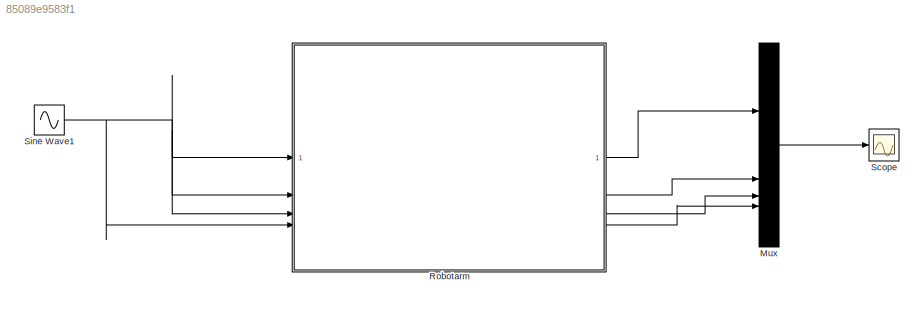
MODEL slx_85089e9583f1
KIND model
CONFIG AbsTol = 1e-3
CONFIG EnableMultiTasking = on
CONFIG FixedStep = auto
CONFIG MaxStep = auto
CONFIG MinStep = auto
CONFIG RelTol = 1e-3
CONFIG SampleTimeConstraint = Unconstrained
CONFIG SolverName = VariableStepAuto
CONFIG StartTime = 0.0
CONFIG StopTime = 10.0
BLOCK [Mux] Mux
  DisplayOption = bar
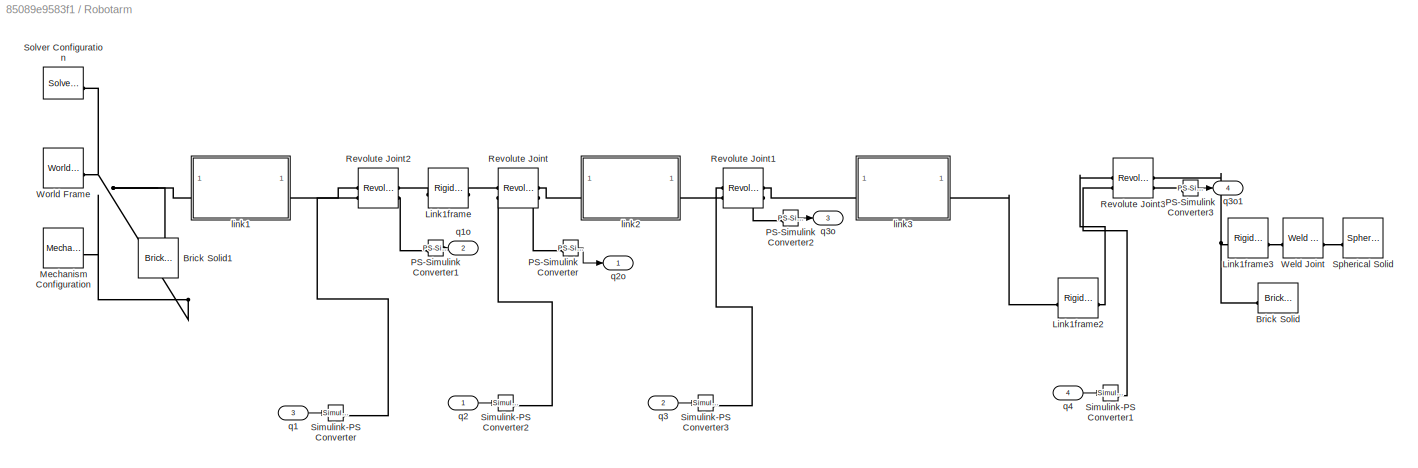
BLOCK [SubSystem] Robotarm
BLOCK [Reference] Robotarm/Brick Solid  REF=sm_lib/Body Elements/Brick Solid
  SourceBlock = sm_lib/Body Elements/Brick Solid
  SourceType = Brick Solid
BLOCK [Reference] Robotarm/Brick Solid1  REF=sm_lib/Body Elements/Brick Solid
  NameLocation = right
  SourceBlock = sm_lib/Body Elements/Brick Solid
  SourceType = Brick Solid
BLOCK [Reference] Robotarm/Link1frame  REF=sm_lib/Frames and
Transforms/Rigid
Transform
  SourceBlock = sm_lib/Frames and\nTransforms/Rigid\nTransform
  SourceType = Rigid\nTransform
BLOCK [Reference] Robotarm/Link1frame2  REF=sm_lib/Frames and
Transforms/Rigid
Transform
  SourceBlock = sm_lib/Frames and\nTransforms/Rigid\nTransform
  SourceType = Rigid\nTransform
BLOCK [Reference] Robotarm/Link1frame3  REF=sm_lib/Frames and
Transforms/Rigid
Transform
  SourceBlock = sm_lib/Frames and\nTransforms/Rigid\nTransform
  SourceType = Rigid\nTransform
BLOCK [Reference] Robotarm/Mechanism Configuration  REF=sm_lib/Utilities/Mechanism
Configuration
  SourceBlock = sm_lib/Utilities/Mechanism\nConfiguration
  SourceType = Mechanism\nConfiguration
BLOCK [Reference] Robotarm/PS-Simulink Converter  REF=nesl_utility/PS-Simulink
Converter
  SourceBlock = nesl_utility/PS-Simulink\nConverter
  SourceType = PS-Simulink\nConverter
BLOCK [Reference] Robotarm/PS-Simulink Converter1  REF=nesl_utility/PS-Simulink
Converter
  SourceBlock = nesl_utility/PS-Simulink\nConverter
  SourceType = PS-Simulink\nConverter
BLOCK [Reference] Robotarm/PS-Simulink Converter2  REF=nesl_utility/PS-Simulink
Converter
  SourceBlock = nesl_utility/PS-Simulink\nConverter
  SourceType = PS-Simulink\nConverter
BLOCK [Reference] Robotarm/PS-Simulink Converter3  REF=nesl_utility/PS-Simulink
Converter
  SourceBlock = nesl_utility/PS-Simulink\nConverter
  SourceType = PS-Simulink\nConverter
BLOCK [Reference] Robotarm/Revolute Joint  REF=sm_lib/Joints/Revolute Joint
  SourceBlock = sm_lib/Joints/Revolute Joint
  SourceType = Revolute Joint
BLOCK [Reference] Robotarm/Revolute Joint1  REF=sm_lib/Joints/Revolute Joint
  SourceBlock = sm_lib/Joints/Revolute Joint
  SourceType = Revolute Joint
BLOCK [Reference] Robotarm/Revolute Joint2  REF=sm_lib/Joints/Revolute Joint
  SourceBlock = sm_lib/Joints/Revolute Joint
  SourceType = Revolute Joint
BLOCK [Reference] Robotarm/Revolute Joint3  REF=sm_lib/Joints/Revolute Joint
  SourceBlock = sm_lib/Joints/Revolute Joint
  SourceType = Revolute Joint
BLOCK [Reference] Robotarm/Simulink-PS Converter  REF=nesl_utility/Simulink-PS
Converter
  SourceBlock = nesl_utility/Simulink-PS\nConverter
  SourceType = Simulink-PS\nConverter
BLOCK [Reference] Robotarm/Simulink-PS Converter1  REF=nesl_utility/Simulink-PS
Converter
  SourceBlock = nesl_utility/Simulink-PS\nConverter
  SourceType = Simulink-PS\nConverter
BLOCK [Reference] Robotarm/Simulink-PS Converter2  REF=nesl_utility/Simulink-PS
Converter
  SourceBlock = nesl_utility/Simulink-PS\nConverter
  SourceType = Simulink-PS\nConverter
BLOCK [Reference] Robotarm/Simulink-PS Converter3  REF=nesl_utility/Simulink-PS
Converter
  SourceBlock = nesl_utility/Simulink-PS\nConverter
  SourceType = Simulink-PS\nConverter
BLOCK [Reference] Robotarm/Solver Configuration  REF=nesl_utility/Solver
Configuration
  SourceBlock = nesl_utility/Solver\nConfiguration
  SourceType = Solver\nConfiguration
BLOCK [Reference] Robotarm/Spherical Solid  REF=sm_lib/Body Elements/Spherical Solid
  SourceBlock = sm_lib/Body Elements/Spherical Solid
  SourceType = Spherical Solid
BLOCK [Reference] Robotarm/Weld Joint  REF=sm_lib/Joints/Weld Joint
  SourceBlock = sm_lib/Joints/Weld Joint
  SourceType = Weld Joint
BLOCK [Reference] Robotarm/World Frame  REF=sm_lib/Frames and
Transforms/World Frame
  SourceBlock = sm_lib/Frames and\nTransforms/World Frame
  SourceType = World Frame
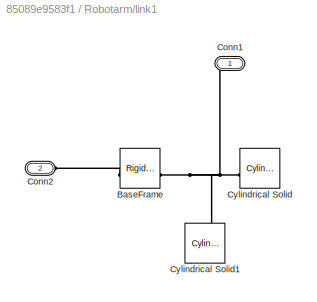
BLOCK [SubSystem] Robotarm/link1
BLOCK [Reference] Robotarm/link1/BaseFrame  REF=sm_lib/Frames and
Transforms/Rigid
Transform
  SourceBlock = sm_lib/Frames and\nTransforms/Rigid\nTransform
  SourceType = Rigid\nTransform
BLOCK [PMIOPort] Robotarm/link1/Conn1
  Side = Right
BLOCK [PMIOPort] Robotarm/link1/Conn2
  Port = 2
  Side = Left
BLOCK [Reference] Robotarm/link1/Cylindrical Solid  REF=sm_lib/Body Elements/Cylindrical Solid
  SourceBlock = sm_lib/Body Elements/Cylindrical Solid
  SourceType = Cylindrical Solid
BLOCK [Reference] Robotarm/link1/Cylindrical Solid1  REF=sm_lib/Body Elements/Cylindrical Solid
  NameLocation = right
  SourceBlock = sm_lib/Body Elements/Cylindrical Solid
  SourceType = Cylindrical Solid
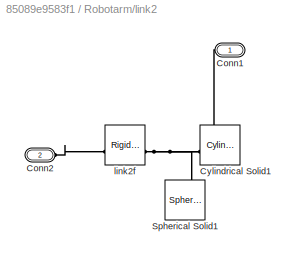
BLOCK [SubSystem] Robotarm/link2
BLOCK [PMIOPort] Robotarm/link2/Conn1
  Side = Right
BLOCK [PMIOPort] Robotarm/link2/Conn2
  Port = 2
  Side = Left
BLOCK [Reference] Robotarm/link2/Cylindrical Solid1  REF=sm_lib/Body Elements/Cylindrical Solid
  SourceBlock = sm_lib/Body Elements/Cylindrical Solid
  SourceType = Cylindrical Solid
BLOCK [Reference] Robotarm/link2/Spherical Solid1  REF=sm_lib/Body Elements/Spherical Solid
  NameLocation = right
  SourceBlock = sm_lib/Body Elements/Spherical Solid
  SourceType = Spherical Solid
BLOCK [Reference] Robotarm/link2/link2f  REF=sm_lib/Frames and
Transforms/Rigid
Transform
  SourceBlock = sm_lib/Frames and\nTransforms/Rigid\nTransform
  SourceType = Rigid\nTransform
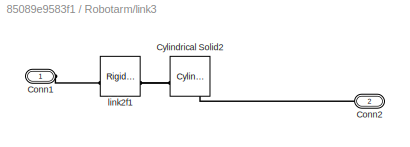
BLOCK [SubSystem] Robotarm/link3
BLOCK [PMIOPort] Robotarm/link3/Conn1
  Side = Left
BLOCK [PMIOPort] Robotarm/link3/Conn2
  Port = 2
  Side = Right
BLOCK [Reference] Robotarm/link3/Cylindrical Solid2  REF=sm_lib/Body Elements/Cylindrical Solid
  SourceBlock = sm_lib/Body Elements/Cylindrical Solid
  SourceType = Cylindrical Solid
BLOCK [Reference] Robotarm/link3/link2f1  REF=sm_lib/Frames and
Transforms/Rigid
Transform
  SourceBlock = sm_lib/Frames and\nTransforms/Rigid\nTransform
  SourceType = Rigid\nTransform
BLOCK [Inport] Robotarm/q1
  Port = 3
BLOCK [Outport] Robotarm/q1o
  Port = 2
BLOCK [Inport] Robotarm/q2
BLOCK [Outport] Robotarm/q2o
BLOCK [Inport] Robotarm/q3
  Port = 2
BLOCK [Outport] Robotarm/q3o
  Port = 3
BLOCK [Outport] Robotarm/q3o1
  Port = 4
BLOCK [Inport] Robotarm/q4
  Port = 4
BLOCK [Scope] Scope
  Floating = off
  NumInputPorts = 1
  ScopeSpecificationString = Simulink.scopes.TimeScopeBlockCfg('CurrentConfiguration', extmgr.ConfigurationSet(extmgr.Configuration('Core','General UI',true),extmgr.Configuration('Core','Source UI',true),extmgr.Configuration('Sources','WiredSimulink',true),extmgr.Configuration('Visuals','Time Domain',true,'SerializedDisplays',{struct('MinYLimReal','-0.65449','MaxYLimReal','0.65449','YLabelReal','','MinYLimMag','0.00000','MaxY...<+1369ch>
BLOCK [Sin] Sine Wave1
  Amplitude = pi/6
  Frequency = 3
  SampleTime = 0
LINE Mux:1 -> Scope:1
LINE Robotarm/PS-Simulink Converter1:1 -> Robotarm/q1o:1
LINE Robotarm/PS-Simulink Converter2:1 -> Robotarm/q3o:1
LINE Robotarm/PS-Simulink Converter3:1 -> Robotarm/q3o1:1
LINE Robotarm/PS-Simulink Converter:1 -> Robotarm/q2o:1
LINE Robotarm/q1:1 -> Robotarm/Simulink-PS Converter:1
LINE Robotarm/q2:1 -> Robotarm/Simulink-PS Converter2:1
LINE Robotarm/q3:1 -> Robotarm/Simulink-PS Converter3:1
LINE Robotarm/q4:1 -> Robotarm/Simulink-PS Converter1:1
LINE Robotarm:1 -> Mux:1
LINE Robotarm:2 -> Mux:2
LINE Robotarm:3 -> Mux:3
LINE Robotarm:4 -> Mux:4
NET Sine Wave1:1 -> Robotarm:1, Robotarm:2, Robotarm:3, Robotarm:4
PNET net1: Robotarm/Brick Solid1:RConn1 -- Robotarm/Mechanism Configuration:RConn1 -- Robotarm/Solver Configuration:RConn1 -- Robotarm/World Frame:RConn1 -- Robotarm/link1:LConn1
PNET net2: Robotarm/Brick Solid:LConn1 -- Robotarm/Link1frame3:LConn1 -- Robotarm/Revolute Joint3:RConn1
PLINE Robotarm/Link1frame2:LConn1 -- Robotarm/link3:RConn1
PLINE Robotarm/Link1frame2:RConn1 -- Robotarm/Revolute Joint3:LConn1
PLINE Robotarm/Link1frame3:RConn1 -- Robotarm/Weld Joint:LConn1
PLINE Robotarm/Link1frame:LConn1 -- Robotarm/Revolute Joint2:RConn1
PLINE Robotarm/Link1frame:RConn1 -- Robotarm/Revolute Joint:LConn1
PLINE Robotarm/PS-Simulink Converter1:LConn1 -- Robotarm/Revolute Joint2:RConn2
PLINE Robotarm/PS-Simulink Converter2:LConn1 -- Robotarm/Revolute Joint1:RConn2
PLINE Robotarm/PS-Simulink Converter3:LConn1 -- Robotarm/Revolute Joint3:RConn2
PLINE Robotarm/PS-Simulink Converter:LConn1 -- Robotarm/Revolute Joint:RConn2
PLINE Robotarm/Revolute Joint1:LConn1 -- Robotarm/link2:RConn1
PLINE Robotarm/Revolute Joint1:LConn2 -- Robotarm/Simulink-PS Converter3:RConn1
PLINE Robotarm/Revolute Joint1:RConn1 -- Robotarm/link3:LConn1
PLINE Robotarm/Revolute Joint2:LConn1 -- Robotarm/link1:RConn1
PLINE Robotarm/Revolute Joint2:LConn2 -- Robotarm/Simulink-PS Converter:RConn1
PLINE Robotarm/Revolute Joint3:LConn2 -- Robotarm/Simulink-PS Converter1:RConn1
PLINE Robotarm/Revolute Joint:LConn2 -- Robotarm/Simulink-PS Converter2:RConn1
PLINE Robotarm/Revolute Joint:RConn1 -- Robotarm/link2:LConn1
PLINE Robotarm/Spherical Solid:RConn1 -- Robotarm/Weld Joint:RConn1
PLINE Robotarm/link1/BaseFrame:LConn1 -- Robotarm/link1/Conn2:RConn1
PNET net3: Robotarm/link1/BaseFrame:RConn1 -- Robotarm/link1/Conn1:RConn1 -- Robotarm/link1/Cylindrical Solid1:LConn1 -- Robotarm/link1/Cylindrical Solid:LConn1
PNET net4: Robotarm/link2/Conn1:RConn1 -- Robotarm/link2/Cylindrical Solid1:LConn1 -- Robotarm/link2/Spherical Solid1:RConn1 -- Robotarm/link2/link2f:RConn1
PLINE Robotarm/link2/Conn2:RConn1 -- Robotarm/link2/link2f:LConn1
PLINE Robotarm/link3/Conn1:RConn1 -- Robotarm/link3/link2f1:LConn1
PNET net5: Robotarm/link3/Conn2:RConn1 -- Robotarm/link3/Cylindrical Solid2:LConn1 -- Robotarm/link3/link2f1:RConn1
note: NET lines group one-source signal fan-out (src -> all destinations, sorted); 1:1 wires keep LINE; PNET lines group multi-terminal physical nets as a canonical sorted terminal list (undirected conserving connections); 2-terminal nets keep the pairwise PLINE form
